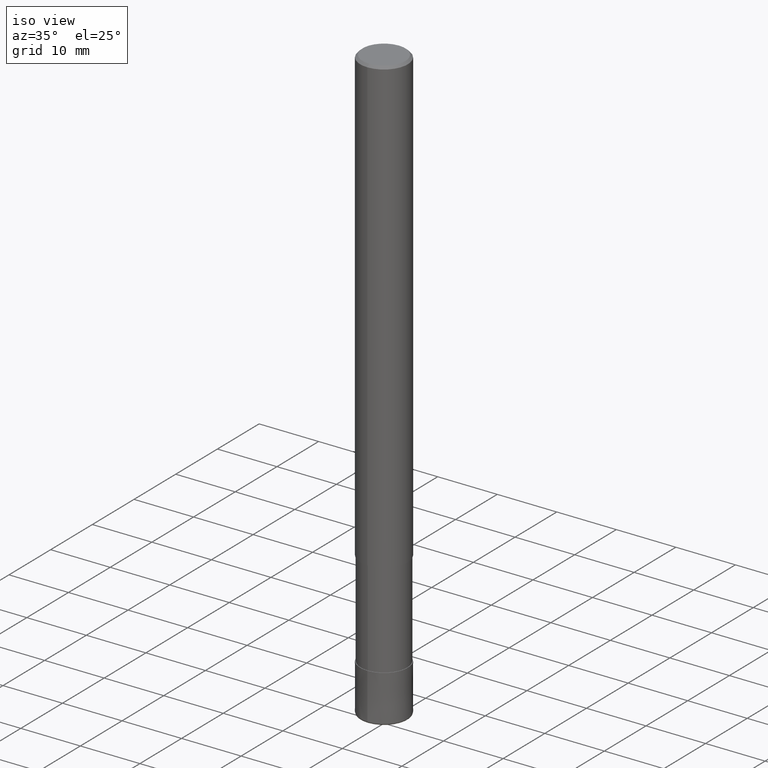
[diagram: clean part render]
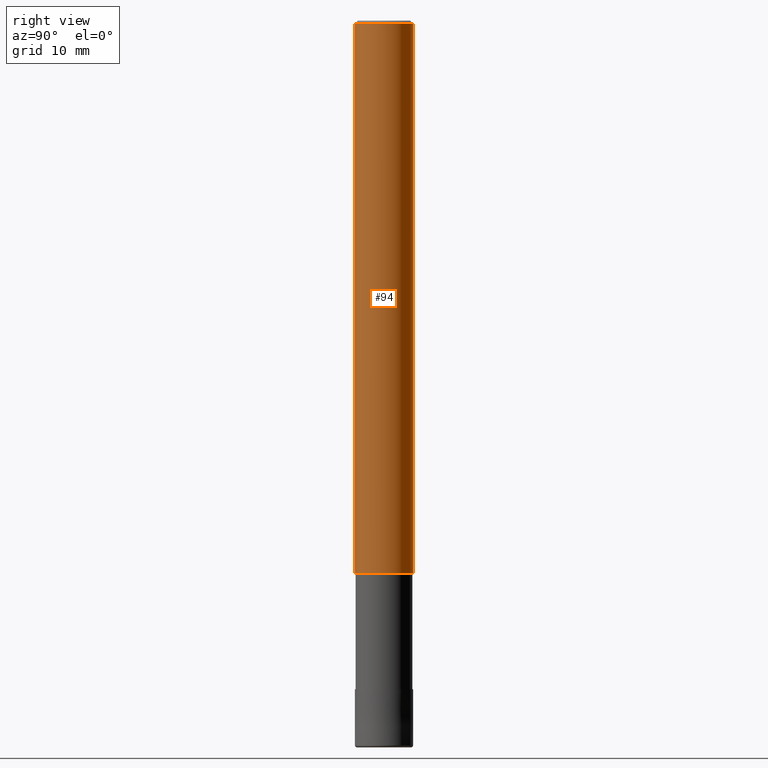
[diagram: tour spotlight — one face highlighted and labeled with its STEP entity id]
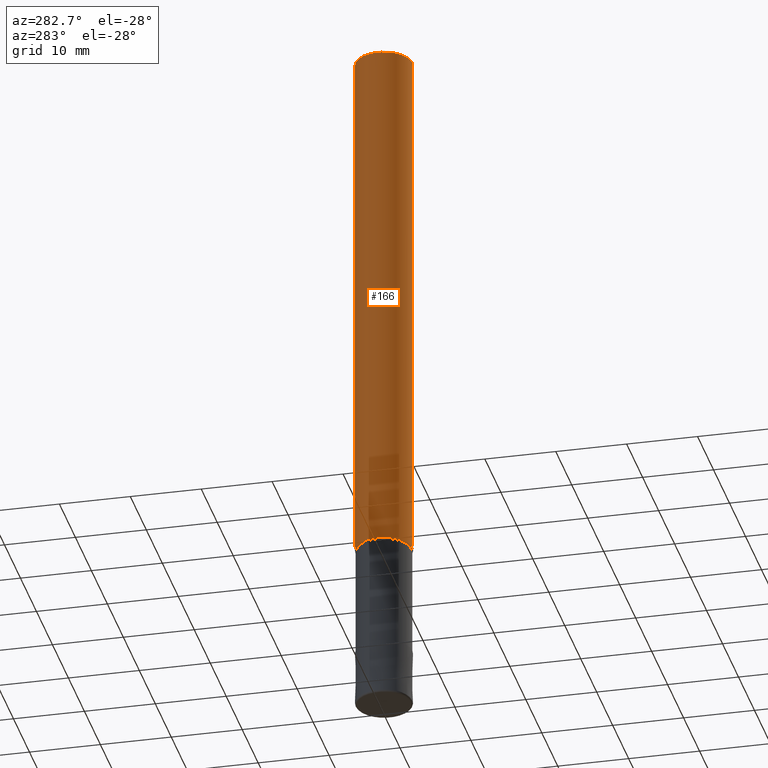
[diagram: tour spotlight — one face highlighted and labeled with its STEP entity id]
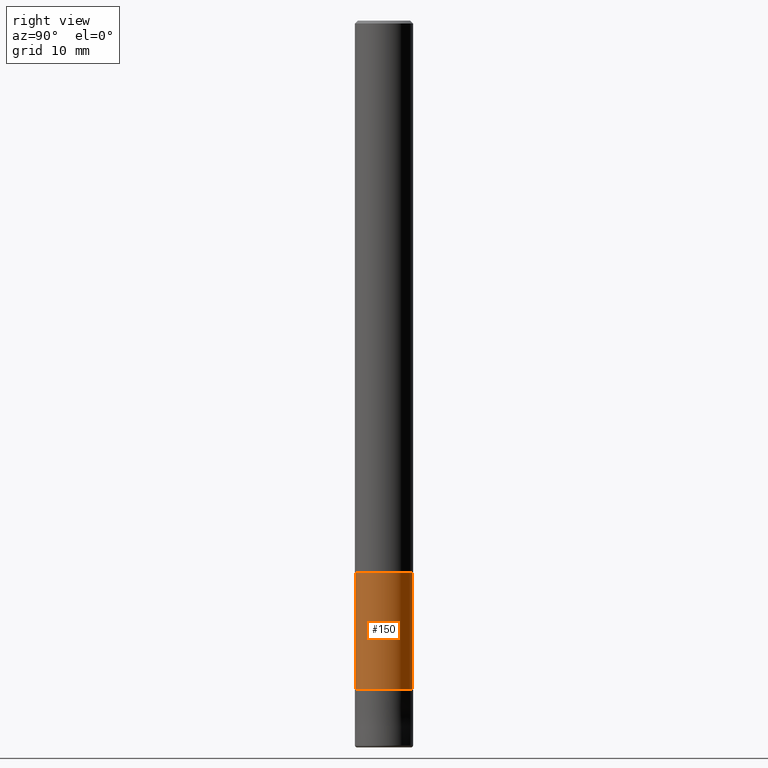
[diagram: tour spotlight — one face highlighted and labeled with its STEP entity id]
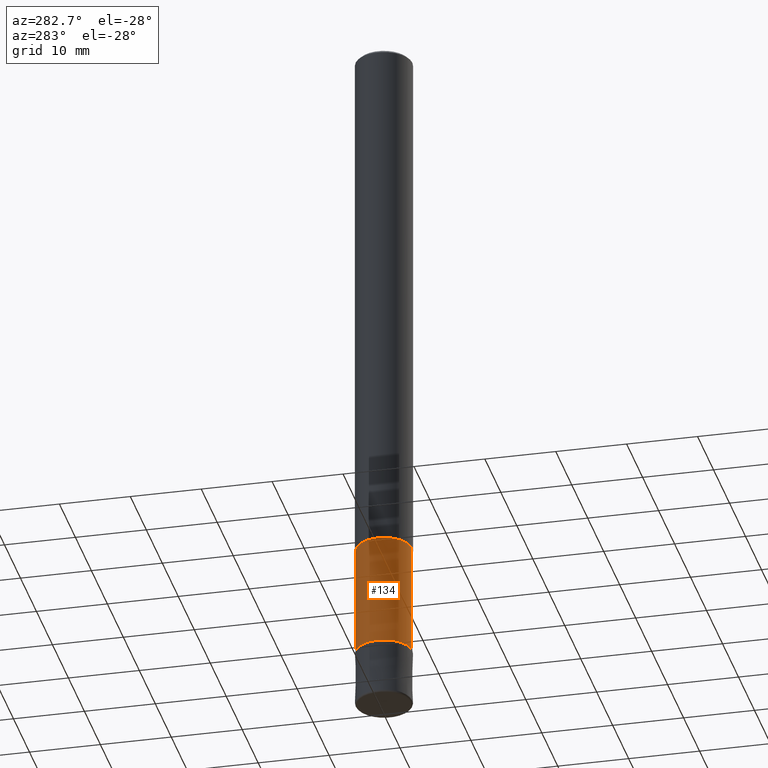
[diagram: tour spotlight — one face highlighted and labeled with its STEP entity id]
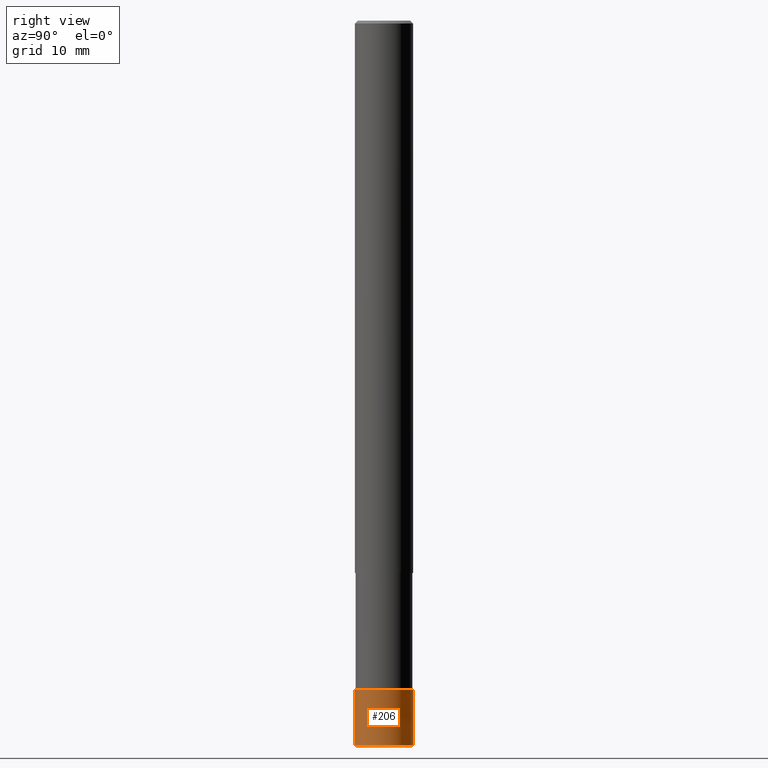
[diagram: tour spotlight — one face highlighted and labeled with its STEP entity id]
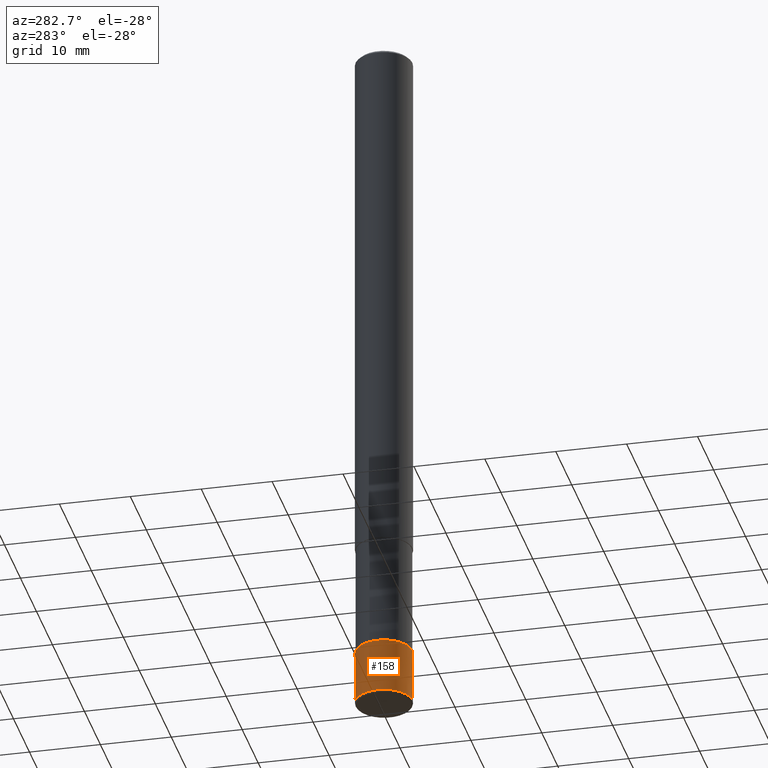
[diagram: tour spotlight — one face highlighted and labeled with its STEP entity id]
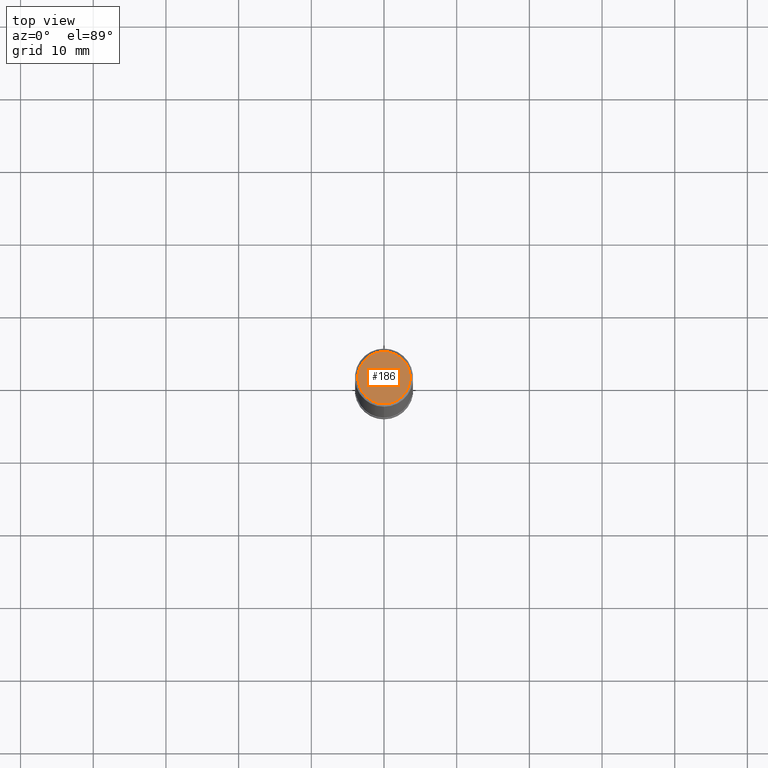
[diagram: tour spotlight — one face highlighted and labeled with its STEP entity id]
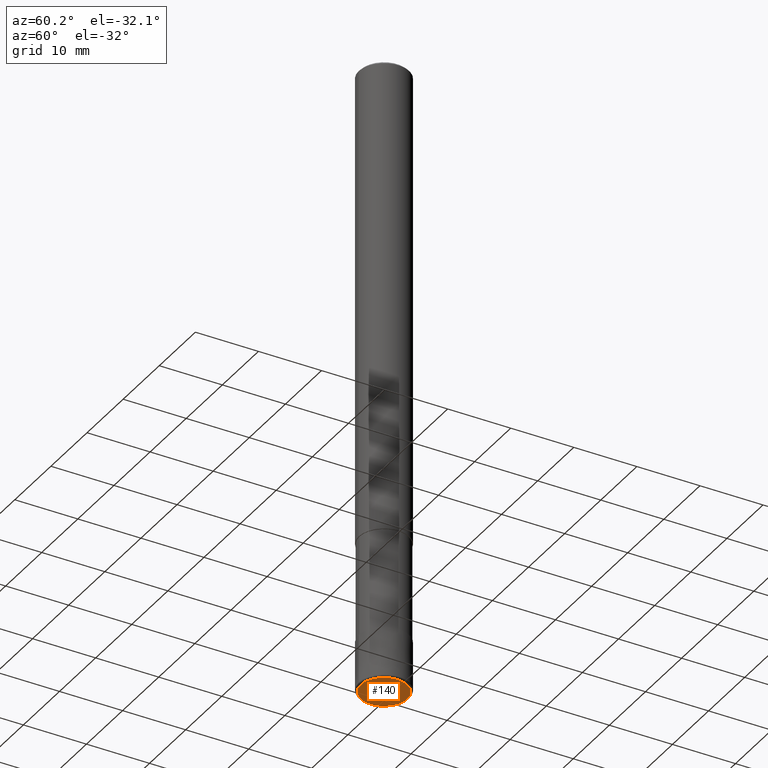
[diagram: tour spotlight — one face highlighted and labeled with its STEP entity id]
A machine part: a face-by-face anatomy tour. The part has 15 B-rep faces; the first image is the clean iso view, then the 8 largest visible faces are spotlighted one at a time (largest first), each with its STEP entity span.

Face 1 — right view, entity #94. In plain terms, the highlighted cylindrical surface (edge-blend (fillet) strip) has radius 4 mm, axis along (-0, -0, 1).
Definition (entity closure, byte-faithful):
#92=VERTEX_POINT('',#229);
#94=ADVANCED_FACE('',(#231),#232,.T.);
#104=EDGE_CURVE('',#128,#92,#242,.T.);
#120=VERTEX_POINT('',#259);
#124=EDGE_CURVE('',#92,#160,#263,.T.);
#128=VERTEX_POINT('',#267);
#160=VERTEX_POINT('',#307);
#162=EDGE_CURVE('',#128,#120,#309,.T.);
#202=EDGE_CURVE('',#160,#120,#353,.T.);
#229=CARTESIAN_POINT('',(0.0,4.0,-76.0));
#231=FACE_OUTER_BOUND('',#376,.T.);
#232=CYLINDRICAL_SURFACE('',#377,4.0);
#242=LINE('',#387,#388);
#259=CARTESIAN_POINT('',(4.89842541528951E-016,-4.0,-0.400000000000006));
#263=CIRCLE('',#416,4.0);
#267=CARTESIAN_POINT('',(0.0,4.0,-0.400000000000006));
#307=CARTESIAN_POINT('',(4.89842541528951E-016,-4.0,-76.0));
#309=CIRCLE('',#472,4.0);
#353=LINE('',#529,#530);
#376=EDGE_LOOP('',(#541,#542,#543,#544));
#377=AXIS2_PLACEMENT_3D('',#545,#546,#547);
#387=CARTESIAN_POINT('',(-4.89842541528951E-016,4.0,-38.2));
#388=VECTOR('',#553,1.0);
#416=AXIS2_PLACEMENT_3D('',#570,#571,#572);
#472=AXIS2_PLACEMENT_3D('',#642,#643,#644);
#529=CARTESIAN_POINT('',(4.89842541528951E-016,-4.0,-38.2));
#530=VECTOR('',#701,1.0);
#541=ORIENTED_EDGE('',*,*,#104,.F.);
#542=ORIENTED_EDGE('',*,*,#162,.T.);
#543=ORIENTED_EDGE('',*,*,#202,.F.);
#544=ORIENTED_EDGE('',*,*,#124,.F.);
#545=CARTESIAN_POINT('',(0.0,0.0,-38.2));
#546=DIRECTION('',(-0.0,-0.0,1.0));
#547=DIRECTION('',(0.0,1.0,0.0));
#553=DIRECTION('',(0.0,0.0,-1.0));
#570=CARTESIAN_POINT('',(0.0,0.0,-76.0));
#571=DIRECTION('',(0.0,0.0,-1.0));
#572=DIRECTION('',(0.0,1.0,0.0));
#642=CARTESIAN_POINT('',(0.0,0.0,-0.400000000000006));
#643=DIRECTION('',(0.0,0.0,-1.0));
#644=DIRECTION('',(0.0,1.0,0.0));
#701=DIRECTION('',(-0.0,-0.0,1.0));

Face 2 — auxiliary view, entity #166. In plain terms, the highlighted cylindrical surface (edge-blend (fillet) strip) has radius 4 mm, axis along (-0, -0, 1).
Definition (entity closure, byte-faithful):
#92=VERTEX_POINT('',#229);
#104=EDGE_CURVE('',#128,#92,#242,.T.);
#106=EDGE_CURVE('',#160,#92,#244,.T.);
#120=VERTEX_POINT('',#259);
#128=VERTEX_POINT('',#267);
#160=VERTEX_POINT('',#307);
#166=ADVANCED_FACE('',(#313),#314,.T.);
#198=EDGE_CURVE('',#120,#128,#349,.T.);
#202=EDGE_CURVE('',#160,#120,#353,.T.);
#229=CARTESIAN_POINT('',(0.0,4.0,-76.0));
#242=LINE('',#387,#388);
#244=CIRCLE('',#391,4.0);
#259=CARTESIAN_POINT('',(4.89842541528951E-016,-4.0,-0.400000000000006));
#267=CARTESIAN_POINT('',(0.0,4.0,-0.400000000000006));
#307=CARTESIAN_POINT('',(4.89842541528951E-016,-4.0,-76.0));
#313=FACE_OUTER_BOUND('',#478,.T.);
#314=CYLINDRICAL_SURFACE('',#479,4.0);
#349=CIRCLE('',#524,4.0);
#353=LINE('',#529,#530);
#387=CARTESIAN_POINT('',(-4.89842541528951E-016,4.0,-38.2));
#388=VECTOR('',#553,1.0);
#391=AXIS2_PLACEMENT_3D('',#554,#555,#556);
#478=EDGE_LOOP('',(#647,#648,#649,#650));
#479=AXIS2_PLACEMENT_3D('',#651,#652,#653);
#524=AXIS2_PLACEMENT_3D('',#698,#699,#700);
#529=CARTESIAN_POINT('',(4.89842541528951E-016,-4.0,-38.2));
#530=VECTOR('',#701,1.0);
#553=DIRECTION('',(0.0,0.0,-1.0));
#554=CARTESIAN_POINT('',(0.0,0.0,-76.0));
#555=DIRECTION('',(0.0,0.0,-1.0));
#556=DIRECTION('',(0.0,1.0,0.0));
#647=ORIENTED_EDGE('',*,*,#104,.T.);
#648=ORIENTED_EDGE('',*,*,#106,.F.);
#649=ORIENTED_EDGE('',*,*,#202,.T.);
#650=ORIENTED_EDGE('',*,*,#198,.T.);
#651=CARTESIAN_POINT('',(0.0,0.0,-38.2));
#652=DIRECTION('',(-0.0,-0.0,1.0));
#653=DIRECTION('',(0.0,1.0,0.0));
#698=CARTESIAN_POINT('',(0.0,0.0,-0.400000000000006));
#699=DIRECTION('',(0.0,0.0,-1.0));
#700=DIRECTION('',(0.0,1.0,0.0));
#701=DIRECTION('',(-0.0,-0.0,1.0));

Face 3 — right view, entity #150. In plain terms, the highlighted cylindrical surface (edge-blend (fillet) strip) has radius 3.9099 mm, axis along (-0, -0, 1).
Definition (entity closure, byte-faithful):
#118=EDGE_CURVE('',#132,#170,#257,.T.);
#132=VERTEX_POINT('',#272);
#138=EDGE_CURVE('',#200,#194,#279,.T.);
#150=ADVANCED_FACE('',(#293),#294,.T.);
#168=EDGE_CURVE('',#200,#170,#316,.T.);
#170=VERTEX_POINT('',#318);
#174=EDGE_CURVE('',#194,#132,#322,.T.);
#194=VERTEX_POINT('',#345);
#200=VERTEX_POINT('',#351);
#257=LINE('',#408,#409);
#272=CARTESIAN_POINT('',(4.7881496131278E-016,-3.90995,-92.0));
#279=LINE('',#435,#436);
#293=FACE_OUTER_BOUND('',#454,.T.);
#294=CYLINDRICAL_SURFACE('',#455,3.90995);
#316=CIRCLE('',#482,3.90995);
#318=CARTESIAN_POINT('',(4.7881496131278E-016,-3.90995,-76.0));
#322=CIRCLE('',#489,3.90995);
#345=CARTESIAN_POINT('',(0.0,3.90995,-92.0));
#351=CARTESIAN_POINT('',(0.0,3.90995,-76.0));
#408=CARTESIAN_POINT('',(4.7881496131278E-016,-3.90995,-84.0));
#409=VECTOR('',#569,1.0);
#435=CARTESIAN_POINT('',(-4.7881496131278E-016,3.90995,-84.0));
#436=VECTOR('',#595,1.0);
#454=EDGE_LOOP('',(#616,#617,#618,#619));
#455=AXIS2_PLACEMENT_3D('',#620,#621,#622);
#482=AXIS2_PLACEMENT_3D('',#654,#655,#656);
#489=AXIS2_PLACEMENT_3D('',#657,#658,#659);
#569=DIRECTION('',(-0.0,-0.0,1.0));
#595=DIRECTION('',(0.0,0.0,-1.0));
#616=ORIENTED_EDGE('',*,*,#138,.F.);
#617=ORIENTED_EDGE('',*,*,#168,.T.);
#618=ORIENTED_EDGE('',*,*,#118,.F.);
#619=ORIENTED_EDGE('',*,*,#174,.F.);
#620=CARTESIAN_POINT('',(0.0,0.0,-84.0));
#621=DIRECTION('',(-0.0,-0.0,1.0));
#622=DIRECTION('',(0.0,1.0,0.0));
#654=CARTESIAN_POINT('',(0.0,0.0,-76.0));
#655=DIRECTION('',(0.0,0.0,-1.0));
#656=DIRECTION('',(0.0,1.0,0.0));
#657=CARTESIAN_POINT('',(0.0,0.0,-92.0));
#658=DIRECTION('',(0.0,0.0,-1.0));
#659=DIRECTION('',(0.0,1.0,0.0));

Face 4 — auxiliary view, entity #134. In plain terms, the highlighted cylindrical surface (edge-blend (fillet) strip) has radius 3.9099 mm, axis along (-0, -0, 1).
Definition (entity closure, byte-faithful):
#118=EDGE_CURVE('',#132,#170,#257,.T.);
#132=VERTEX_POINT('',#272);
#134=ADVANCED_FACE('',(#274),#275,.T.);
#138=EDGE_CURVE('',#200,#194,#279,.T.);
#156=EDGE_CURVE('',#170,#200,#302,.T.);
#170=VERTEX_POINT('',#318);
#194=VERTEX_POINT('',#345);
#196=EDGE_CURVE('',#132,#194,#347,.T.);
#200=VERTEX_POINT('',#351);
#257=LINE('',#408,#409);
#272=CARTESIAN_POINT('',(4.7881496131278E-016,-3.90995,-92.0));
#274=FACE_OUTER_BOUND('',#428,.T.);
#275=CYLINDRICAL_SURFACE('',#429,3.90995);
#279=LINE('',#435,#436);
#302=CIRCLE('',#464,3.90995);
#318=CARTESIAN_POINT('',(4.7881496131278E-016,-3.90995,-76.0));
#345=CARTESIAN_POINT('',(0.0,3.90995,-92.0));
#347=CIRCLE('',#521,3.90995);
#351=CARTESIAN_POINT('',(0.0,3.90995,-76.0));
#408=CARTESIAN_POINT('',(4.7881496131278E-016,-3.90995,-84.0));
#409=VECTOR('',#569,1.0);
#428=EDGE_LOOP('',(#585,#586,#587,#588));
#429=AXIS2_PLACEMENT_3D('',#589,#590,#591);
#435=CARTESIAN_POINT('',(-4.7881496131278E-016,3.90995,-84.0));
#436=VECTOR('',#595,1.0);
#464=AXIS2_PLACEMENT_3D('',#631,#632,#633);
#521=AXIS2_PLACEMENT_3D('',#695,#696,#697);
#569=DIRECTION('',(-0.0,-0.0,1.0));
#585=ORIENTED_EDGE('',*,*,#138,.T.);
#586=ORIENTED_EDGE('',*,*,#196,.F.);
#587=ORIENTED_EDGE('',*,*,#118,.T.);
#588=ORIENTED_EDGE('',*,*,#156,.T.);
#589=CARTESIAN_POINT('',(0.0,0.0,-84.0));
#590=DIRECTION('',(-0.0,-0.0,1.0));
#591=DIRECTION('',(0.0,1.0,0.0));
#595=DIRECTION('',(0.0,0.0,-1.0));
#631=CARTESIAN_POINT('',(0.0,0.0,-76.0));
#632=DIRECTION('',(0.0,0.0,-1.0));
#633=DIRECTION('',(0.0,1.0,0.0));
#695=CARTESIAN_POINT('',(0.0,0.0,-92.0));
#696=DIRECTION('',(0.0,0.0,-1.0));
#697=DIRECTION('',(0.0,1.0,0.0));

Face 5 — right view, entity #206. In plain terms, the highlighted conical surface has half-angle 0.001 deg.
Definition (entity closure, byte-faithful):
#96=VERTEX_POINT('',#234);
#98=EDGE_CURVE('',#204,#154,#236,.T.);
#142=EDGE_CURVE('',#178,#96,#284,.T.);
#144=EDGE_CURVE('',#154,#96,#286,.T.);
#154=VERTEX_POINT('',#300);
#164=EDGE_CURVE('',#178,#204,#311,.T.);
#178=VERTEX_POINT('',#326);
#204=VERTEX_POINT('',#355);
#206=ADVANCED_FACE('',(#357),#358,.T.);
#234=CARTESIAN_POINT('',(4.89830295465413E-016,-3.9999,-92.0));
#236=CIRCLE('',#382,4.0);
#284=CIRCLE('',#442,3.9999);
#286=LINE('',#445,#446);
#300=CARTESIAN_POINT('',(4.89842541528951E-016,-4.0,-99.7));
#311=LINE('',#475,#476);
#326=CARTESIAN_POINT('',(0.0,3.9999,-92.0));
#355=CARTESIAN_POINT('',(0.0,4.0,-99.7));
#357=FACE_OUTER_BOUND('',#534,.T.);
#358=CONICAL_SURFACE('',#535,3.99995,1.29870129863103E-005);
#382=AXIS2_PLACEMENT_3D('',#548,#549,#550);
#442=AXIS2_PLACEMENT_3D('',#602,#603,#604);
#445=CARTESIAN_POINT('',(4.89836418497182E-016,-3.99995,-95.85));
#446=VECTOR('',#605,1.0);
#475=CARTESIAN_POINT('',(-4.89836418497182E-016,3.99995,-95.85));
#476=VECTOR('',#645,1.0);
#534=EDGE_LOOP('',(#703,#704,#705,#706));
#535=AXIS2_PLACEMENT_3D('',#707,#708,#709);
#548=CARTESIAN_POINT('',(0.0,0.0,-99.7));
#549=DIRECTION('',(0.0,0.0,-1.0));
#550=DIRECTION('',(0.0,1.0,0.0));
#602=CARTESIAN_POINT('',(0.0,0.0,-92.0));
#603=DIRECTION('',(0.0,0.0,-1.0));
#604=DIRECTION('',(0.0,1.0,0.0));
#605=DIRECTION('',(-1.59039786197622E-021,1.29870129859452E-005,0.999999999915669));
#645=DIRECTION('',(-1.59039786197622E-021,1.29870129859452E-005,-0.999999999915669));
#703=ORIENTED_EDGE('',*,*,#164,.F.);
#704=ORIENTED_EDGE('',*,*,#142,.T.);
#705=ORIENTED_EDGE('',*,*,#144,.F.);
#706=ORIENTED_EDGE('',*,*,#98,.F.);
#707=CARTESIAN_POINT('',(0.0,0.0,-95.85));
#708=DIRECTION('',(0.0,-0.0,-1.0));
#709=DIRECTION('',(0.0,1.0,0.0));

Face 6 — auxiliary view, entity #158. In plain terms, the highlighted conical surface has half-angle 0.001 deg.
Definition (entity closure, byte-faithful):
#96=VERTEX_POINT('',#234);
#110=EDGE_CURVE('',#154,#204,#249,.T.);
#144=EDGE_CURVE('',#154,#96,#286,.T.);
#154=VERTEX_POINT('',#300);
#158=ADVANCED_FACE('',(#304),#305,.T.);
#164=EDGE_CURVE('',#178,#204,#311,.T.);
#176=EDGE_CURVE('',#96,#178,#324,.T.);
#178=VERTEX_POINT('',#326);
#204=VERTEX_POINT('',#355);
#234=CARTESIAN_POINT('',(4.89830295465413E-016,-3.9999,-92.0));
#249=CIRCLE('',#397,4.0);
#286=LINE('',#445,#446);
#300=CARTESIAN_POINT('',(4.89842541528951E-016,-4.0,-99.7));
#304=FACE_OUTER_BOUND('',#466,.T.);
#305=CONICAL_SURFACE('',#467,3.99995,1.29870129863103E-005);
#311=LINE('',#475,#476);
#324=CIRCLE('',#492,3.9999);
#326=CARTESIAN_POINT('',(0.0,3.9999,-92.0));
#355=CARTESIAN_POINT('',(0.0,4.0,-99.7));
#397=AXIS2_PLACEMENT_3D('',#565,#566,#567);
#445=CARTESIAN_POINT('',(4.89836418497182E-016,-3.99995,-95.85));
#446=VECTOR('',#605,1.0);
#466=EDGE_LOOP('',(#635,#636,#637,#638));
#467=AXIS2_PLACEMENT_3D('',#639,#640,#641);
#475=CARTESIAN_POINT('',(-4.89836418497182E-016,3.99995,-95.85));
#476=VECTOR('',#645,1.0);
#492=AXIS2_PLACEMENT_3D('',#660,#661,#662);
#565=CARTESIAN_POINT('',(0.0,0.0,-99.7));
#566=DIRECTION('',(0.0,0.0,-1.0));
#567=DIRECTION('',(0.0,1.0,0.0));
#605=DIRECTION('',(-1.59039786197622E-021,1.29870129859452E-005,0.999999999915669));
#635=ORIENTED_EDGE('',*,*,#164,.T.);
#636=ORIENTED_EDGE('',*,*,#110,.F.);
#637=ORIENTED_EDGE('',*,*,#144,.T.);
#638=ORIENTED_EDGE('',*,*,#176,.T.);
#639=CARTESIAN_POINT('',(0.0,0.0,-95.85));
#640=DIRECTION('',(0.0,-0.0,-1.0));
#641=DIRECTION('',(0.0,1.0,0.0));
#645=DIRECTION('',(-1.59039786197622E-021,1.29870129859452E-005,-0.999999999915669));
#660=CARTESIAN_POINT('',(0.0,0.0,-92.0));
#661=DIRECTION('',(0.0,0.0,-1.0));
#662=DIRECTION('',(0.0,1.0,0.0));

Face 7 — top view, entity #186. In plain terms, the highlighted planar face has unit normal (-0, 0, 1).
Definition (entity closure, byte-faithful):
#112=VERTEX_POINT('',#251);
#116=VERTEX_POINT('',#255);
#136=EDGE_CURVE('',#112,#116,#277,.T.);
#186=ADVANCED_FACE('',(#336),#337,.T.);
#190=EDGE_CURVE('',#116,#112,#341,.T.);
#251=CARTESIAN_POINT('',(4.40858287376056E-016,-3.6,0.0));
#255=CARTESIAN_POINT('',(0.0,3.6,0.0));
#277=CIRCLE('',#432,3.6);
#336=FACE_OUTER_BOUND('',#505,.T.);
#337=PLANE('',#506);
#341=CIRCLE('',#512,3.6);
#432=AXIS2_PLACEMENT_3D('',#592,#593,#594);
#505=EDGE_LOOP('',(#683,#684));
#506=AXIS2_PLACEMENT_3D('',#685,#686,#687);
#512=AXIS2_PLACEMENT_3D('',#691,#692,#693);
#592=CARTESIAN_POINT('',(0.0,0.0,0.0));
#593=DIRECTION('',(0.0,0.0,-1.0));
#594=DIRECTION('',(0.0,1.0,0.0));
#683=ORIENTED_EDGE('',*,*,#190,.F.);
#684=ORIENTED_EDGE('',*,*,#136,.F.);
#685=CARTESIAN_POINT('',(0.0,1.8,0.0));
#686=DIRECTION('',(-0.0,0.0,1.0));
#687=DIRECTION('',(0.0,-1.0,0.0));
#691=CARTESIAN_POINT('',(0.0,0.0,0.0));
#692=DIRECTION('',(0.0,0.0,-1.0));
#693=DIRECTION('',(0.0,1.0,0.0));

Face 8 — auxiliary view, entity #140. In plain terms, the highlighted planar face has unit normal (0, 0, -1).
Definition (entity closure, byte-faithful):
#122=VERTEX_POINT('',#261);
#140=ADVANCED_FACE('',(#281),#282,.T.);
#146=EDGE_CURVE('',#122,#172,#288,.T.);
#172=VERTEX_POINT('',#320);
#184=EDGE_CURVE('',#172,#122,#334,.T.);
#261=CARTESIAN_POINT('',(4.5310435091428E-016,-3.7,-100.0));
#281=FACE_OUTER_BOUND('',#438,.T.);
#282=PLANE('',#439);
#288=CIRCLE('',#449,3.7);
#320=CARTESIAN_POINT('',(0.0,3.7,-100.0));
#334=CIRCLE('',#503,3.7);
#438=EDGE_LOOP('',(#597,#598));
#439=AXIS2_PLACEMENT_3D('',#599,#600,#601);
#449=AXIS2_PLACEMENT_3D('',#606,#607,#608);
#503=AXIS2_PLACEMENT_3D('',#679,#680,#681);
#597=ORIENTED_EDGE('',*,*,#184,.T.);
#598=ORIENTED_EDGE('',*,*,#146,.T.);
#599=CARTESIAN_POINT('',(0.0,1.85,-100.0));
#600=DIRECTION('',(0.0,0.0,-1.0));
#601=DIRECTION('',(0.0,1.0,0.0));
#606=CARTESIAN_POINT('',(0.0,0.0,-100.0));
#607=DIRECTION('',(0.0,0.0,-1.0));
#608=DIRECTION('',(0.0,1.0,0.0));
#679=CARTESIAN_POINT('',(0.0,0.0,-100.0));
#680=DIRECTION('',(0.0,0.0,-1.0));
#681=DIRECTION('',(0.0,1.0,0.0));